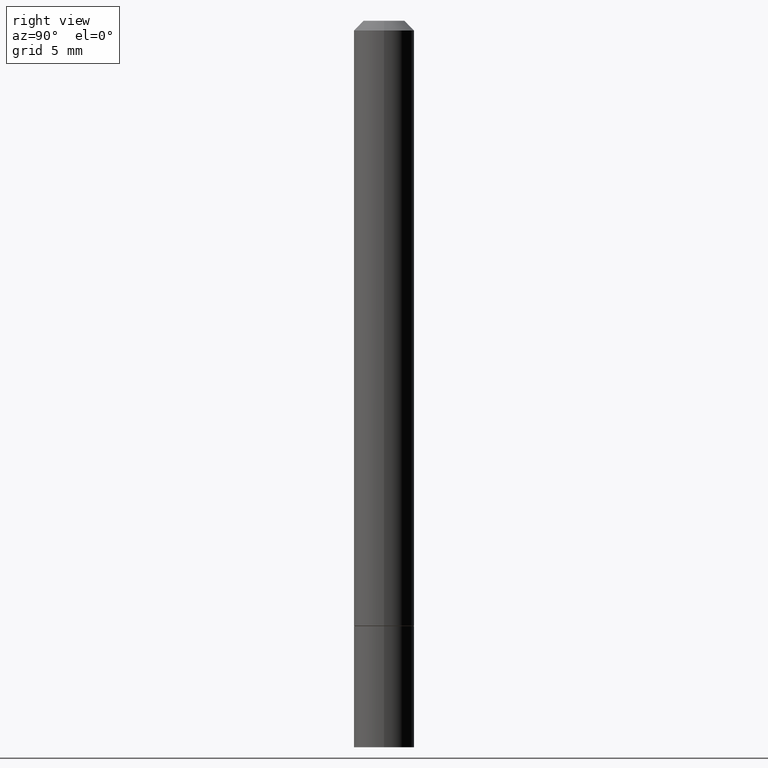
[diagram: clean part render]
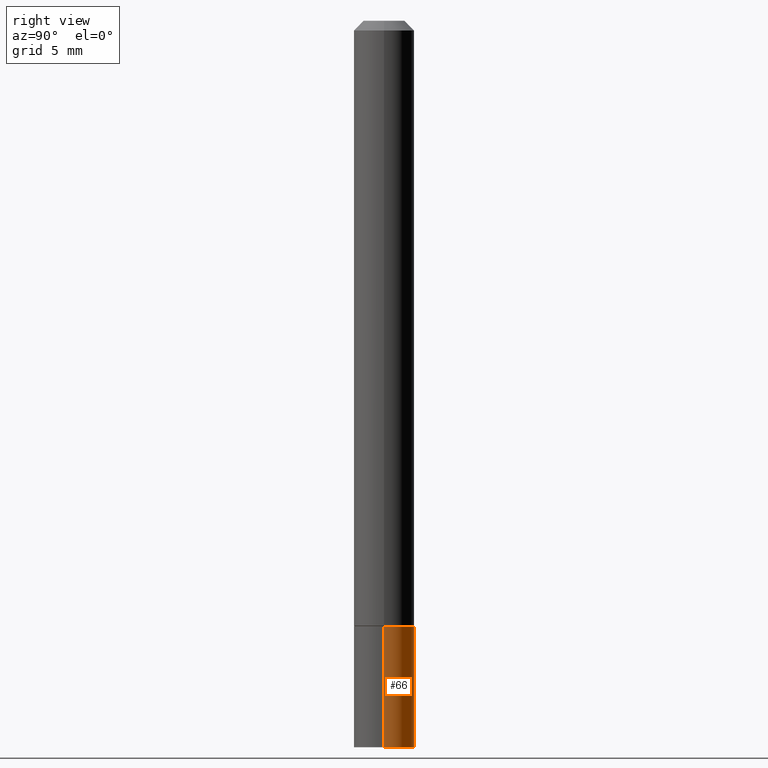
[diagram: same view with one face highlighted and labeled with its STEP entity id]
A machine part, right view. The second image highlights one B-rep face of the part: STEP entity #66.
In plain terms, the highlighted cylindrical surface (edge-blend (fillet) strip) has radius 1.5875 mm, axis along (-0, 0, 1).
Its self-contained STEP definition (entity closure, byte-faithful):
#1 = ORIENTED_EDGE ( 'NONE', *, *, #277, .T. ) ;
#8 = CARTESIAN_POINT ( 'NONE',  ( 0.06250000000000001388, -5.673657175620109846E-15, -1.500000000000000222 ) ) ;
#22 = ORIENTED_EDGE ( 'NONE', *, *, #143, .F. ) ;
#24 = CARTESIAN_POINT ( 'NONE',  ( 0.000000000000000000, 0.000000000000000000, 0.000000000000000000 ) ) ;
#25 = CARTESIAN_POINT ( 'NONE',  ( 3.668203209277704895E-29, -5.237222008264718177E-15, -1.500000000000000222 ) ) ;
#27 = VERTEX_POINT ( 'NONE', #361 ) ;
#28 = DIRECTION ( 'NONE',  ( -2.445468806185136597E-29, 3.491481338843145583E-15, 1.000000000000000000 ) ) ;
#43 = DIRECTION ( 'NONE',  ( -2.445468806185136597E-29, 3.491481338843145583E-15, 1.000000000000000000 ) ) ;
#55 = EDGE_CURVE ( 'NONE', #183, #27, #83, .T. ) ;
#62 = CYLINDRICAL_SURFACE ( 'NONE', #259, 0.06250000000000001388 ) ;
#66 = ADVANCED_FACE ( 'NONE', ( #88 ), #62, .T. ) ;
#74 = DIRECTION ( 'NONE',  ( -2.445468806185136877E-29, 3.491481338843145188E-15, 1.000000000000000000 ) ) ;
#83 = LINE ( 'NONE', #338, #174 ) ;
#88 = FACE_OUTER_BOUND ( 'NONE', #295, .T. ) ;
#95 = CARTESIAN_POINT ( 'NONE',  ( -0.06250000000000001388, -4.356697631059263102E-15, -1.500000000000000222 ) ) ;
#109 = LINE ( 'NONE', #127, #203 ) ;
#117 = DIRECTION ( 'NONE',  ( 1.000000000000000000, -6.982962677686269077E-15, 0.000000000000000000 ) ) ;
#126 = ORIENTED_EDGE ( 'NONE', *, *, #55, .F. ) ;
#127 = CARTESIAN_POINT ( 'NONE',  ( -0.06250000000000001388, 4.440892098500627148E-16, -3.074334431409317165E-30 ) ) ;
#137 = DIRECTION ( 'NONE',  ( 1.000000000000000000, -6.982962677686267499E-15, 4.876176775795935793E-29 ) ) ;
#143 = EDGE_CURVE ( 'NONE', #27, #250, #233, .T. ) ;
#149 = CARTESIAN_POINT ( 'NONE',  ( -0.06250000000000001388, -4.356697631059263102E-15, -1.250000000000000000 ) ) ;
#174 = VECTOR ( 'NONE', #186, 39.37007874015748143 ) ;
#176 = CIRCLE ( 'NONE', #299, 0.06250000000000001388 ) ;
#181 = AXIS2_PLACEMENT_3D ( 'NONE', #255, #43, #117 ) ;
#183 = VERTEX_POINT ( 'NONE', #8 ) ;
#186 = DIRECTION ( 'NONE',  ( -2.445468806185136877E-29, 3.491481338843145188E-15, 1.000000000000000000 ) ) ;
#203 = VECTOR ( 'NONE', #74, 39.37007874015748143 ) ;
#204 = VERTEX_POINT ( 'NONE', #95 ) ;
#233 = CIRCLE ( 'NONE', #181, 0.06250000000000001388 ) ;
#250 = VERTEX_POINT ( 'NONE', #149 ) ;
#255 = CARTESIAN_POINT ( 'NONE',  ( 3.056836007731421306E-29, -4.364351673553932471E-15, -1.250000000000000000 ) ) ;
#259 = AXIS2_PLACEMENT_3D ( 'NONE', #24, #306, #137 ) ;
#277 = EDGE_CURVE ( 'NONE', #204, #250, #109, .T. ) ;
#290 = EDGE_CURVE ( 'NONE', #183, #204, #176, .T. ) ;
#295 = EDGE_LOOP ( 'NONE', ( #331, #1, #22, #126 ) ) ;
#299 = AXIS2_PLACEMENT_3D ( 'NONE', #25, #28, #356 ) ;
#306 = DIRECTION ( 'NONE',  ( -2.445468806185136597E-29, 3.491481338843145583E-15, 1.000000000000000000 ) ) ;
#331 = ORIENTED_EDGE ( 'NONE', *, *, #290, .T. ) ;
#338 = CARTESIAN_POINT ( 'NONE',  ( 0.06250000000000001388, -4.364351673553918173E-16, 3.047610484872460571E-30 ) ) ;
#356 = DIRECTION ( 'NONE',  ( 1.000000000000000000, -6.982962677686261189E-15, 0.000000000000000000 ) ) ;
#361 = CARTESIAN_POINT ( 'NONE',  ( 0.06250000000000001388, -4.800786840909324141E-15, -1.250000000000000000 ) ) ;